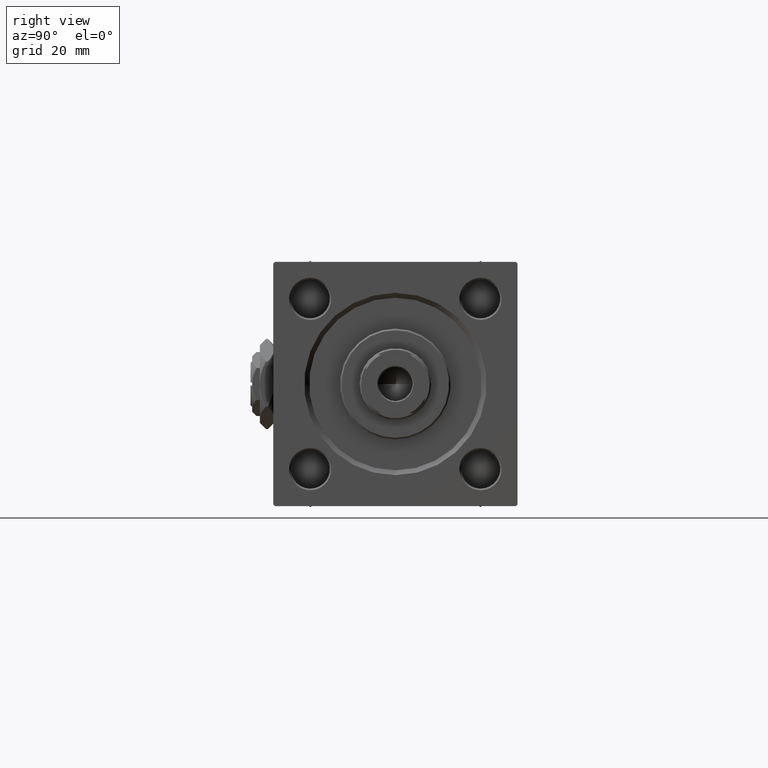
[diagram: clean part render]
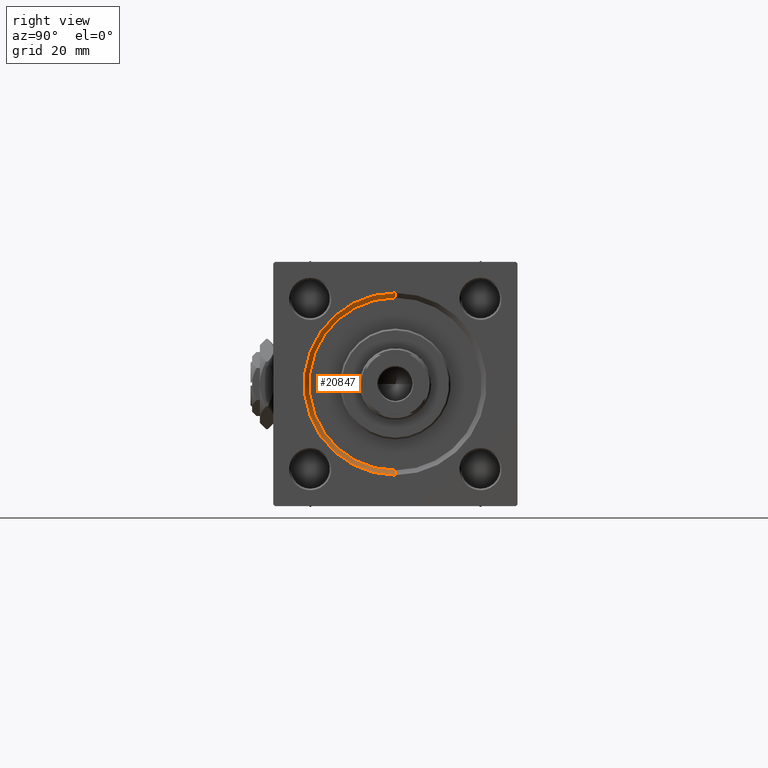
[diagram: same view with one face highlighted and labeled with its STEP entity id]
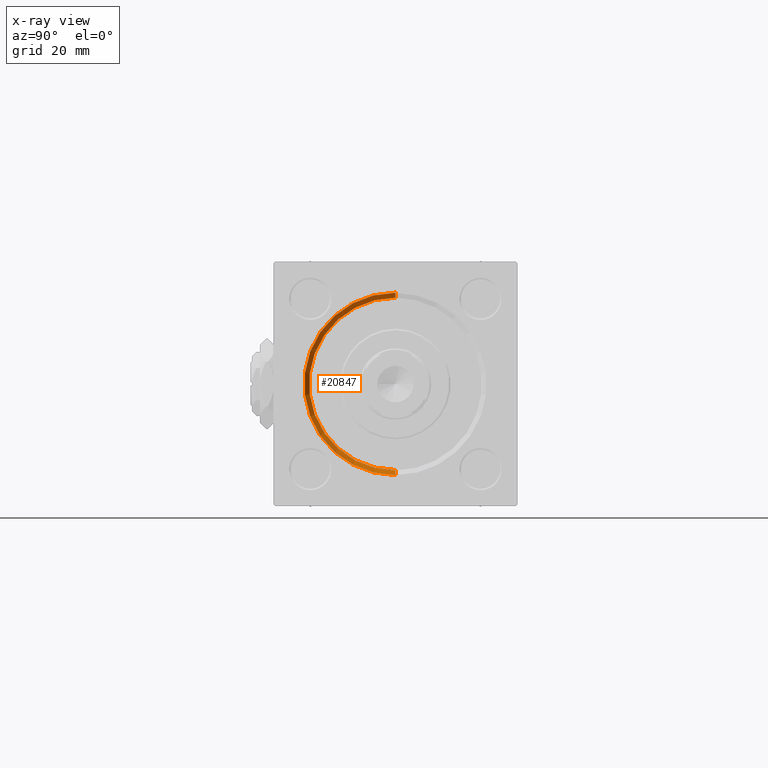
[diagram: x-ray of the same camera — body ghosted, the highlighted face saturated]
A machine part, right view. The second image highlights one B-rep face of the part: STEP entity #20847.
The next image is the same camera in x-ray: the body ghosted, the highlighted face saturated — about 0% of this face is hidden behind the body in this view.
In plain terms, the highlighted conical surface has half-angle 45 deg.
Its self-contained STEP definition (entity closure, byte-faithful):
#118 = CIRCLE ( 'NONE', #28813, 27.99999999999999645 ) ;
#216 = VERTEX_POINT ( 'NONE', #48012 ) ;
#617 = EDGE_CURVE ( 'NONE', #216, #41017, #35052, .T. ) ;
#3285 = EDGE_CURVE ( 'NONE', #40989, #216, #38746, .T. ) ;
#3357 = ORIENTED_EDGE ( 'NONE', *, *, #3285, .F. ) ;
#4733 = DIRECTION ( 'NONE',  ( 0.000000000000000000, 0.000000000000000000, -1.000000000000000000 ) ) ;
#5578 = ORIENTED_EDGE ( 'NONE', *, *, #9220, .F. ) ;
#6236 = VECTOR ( 'NONE', #39051, 1000.000000000000114 ) ;
#9220 = EDGE_CURVE ( 'NONE', #41017, #45124, #118, .T. ) ;
#10799 = LINE ( 'NONE', #42998, #6236 ) ;
#12026 = DIRECTION ( 'NONE',  ( 1.000000000000000000, 0.000000000000000000, 0.000000000000000000 ) ) ;
#14473 = DIRECTION ( 'NONE',  ( 0.000000000000000000, 0.000000000000000000, 1.000000000000000000 ) ) ;
#15032 = CONICAL_SURFACE ( 'NONE', #30246, 26.50000000000000355, 0.7853981633974644883 ) ;
#15569 = CARTESIAN_POINT ( 'NONE',  ( 152.5000000000000568, 3.245314017740486554E-15, 26.50000000000000355 ) ) ;
#15933 = EDGE_LOOP ( 'NONE', ( #3357, #32397, #5578, #37739 ) ) ;
#16086 = DIRECTION ( 'NONE',  ( 1.000000000000000000, 0.000000000000000000, 0.000000000000000000 ) ) ;
#17733 = EDGE_CURVE ( 'NONE', #40989, #45124, #10799, .T. ) ;
#20847 = ADVANCED_FACE ( 'NONE', ( #40123 ), #15032, .F. ) ;
#22128 = DIRECTION ( 'NONE',  ( -1.000000000000000000, -0.000000000000000000, 0.000000000000000000 ) ) ;
#28143 = DIRECTION ( 'NONE',  ( 0.000000000000000000, 0.000000000000000000, 1.000000000000000000 ) ) ;
#28813 = AXIS2_PLACEMENT_3D ( 'NONE', #30057, #22128, #14473 ) ;
#29456 = AXIS2_PLACEMENT_3D ( 'NONE', #36061, #12026, #28143 ) ;
#30057 = CARTESIAN_POINT ( 'NONE',  ( 154.0000000000000000, 0.000000000000000000, 0.000000000000000000 ) ) ;
#30246 = AXIS2_PLACEMENT_3D ( 'NONE', #44585, #16086, #4733 ) ;
#30828 = DIRECTION ( 'NONE',  ( 0.7071067811865361374, 0.000000000000000000, -0.7071067811865588970 ) ) ;
#32397 = ORIENTED_EDGE ( 'NONE', *, *, #17733, .T. ) ;
#33047 = CARTESIAN_POINT ( 'NONE',  ( 154.0000000000000000, 3.429011037612588881E-15, 27.99999999999999645 ) ) ;
#35052 = LINE ( 'NONE', #38763, #35383 ) ;
#35383 = VECTOR ( 'NONE', #30828, 1000.000000000000114 ) ;
#36061 = CARTESIAN_POINT ( 'NONE',  ( 152.5000000000000568, 0.000000000000000000, 0.000000000000000000 ) ) ;
#37739 = ORIENTED_EDGE ( 'NONE', *, *, #617, .F. ) ;
#38746 = CIRCLE ( 'NONE', #29456, 26.50000000000000355 ) ;
#38763 = CARTESIAN_POINT ( 'NONE',  ( 152.5000000000000568, 0.000000000000000000, -26.50000000000000355 ) ) ;
#39051 = DIRECTION ( 'NONE',  ( 0.7071067811865361374, 8.659560562355073374E-17, 0.7071067811865588970 ) ) ;
#40123 = FACE_OUTER_BOUND ( 'NONE', #15933, .T. ) ;
#40989 = VERTEX_POINT ( 'NONE', #15569 ) ;
#41017 = VERTEX_POINT ( 'NONE', #48794 ) ;
#42998 = CARTESIAN_POINT ( 'NONE',  ( 152.5000000000000568, 3.245314017740486554E-15, 26.50000000000000355 ) ) ;
#44585 = CARTESIAN_POINT ( 'NONE',  ( 152.5000000000000568, 0.000000000000000000, 0.000000000000000000 ) ) ;
#45124 = VERTEX_POINT ( 'NONE', #33047 ) ;
#48012 = CARTESIAN_POINT ( 'NONE',  ( 152.5000000000000568, 0.000000000000000000, -26.50000000000000355 ) ) ;
#48794 = CARTESIAN_POINT ( 'NONE',  ( 154.0000000000000000, 0.000000000000000000, -27.99999999999999645 ) ) ;